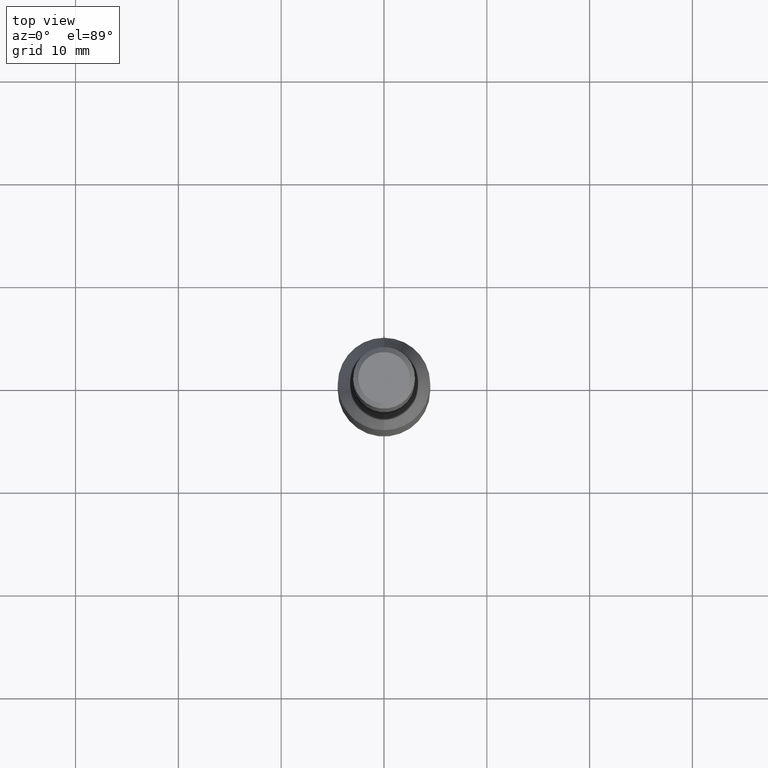
[diagram: clean part render]
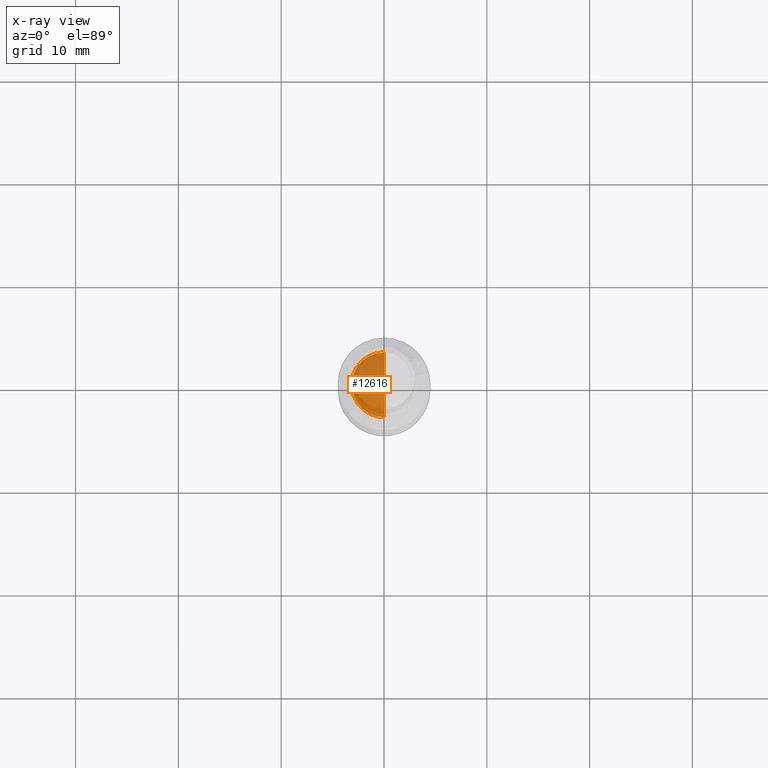
[diagram: x-ray — body ghosted, one internal face saturated and labeled with its STEP entity id]
A machine part, top view, then the same camera in x-ray: the body is ghosted and one INTERNAL B-rep face — a face not visible from any outside direction — is saturated and labeled: STEP entity #12616.
In plain terms, the highlighted conical surface has half-angle 59 deg.
Its self-contained STEP definition (entity closure, byte-faithful):
#36 = VERTEX_POINT ( 'NONE', #6947 ) ;
#1636 = EDGE_CURVE ( 'NONE', #8512, #2164, #7143, .T. ) ;
#1727 = DIRECTION ( 'NONE',  ( 1.049727191138616400E-016, -0.8571673007021104500, -0.5150380749100574900 ) ) ;
#1789 = CONICAL_SURFACE ( 'NONE', #7778, 3.149999999999996400, 1.029744258676650800 ) ;
#1980 = ORIENTED_EDGE ( 'NONE', *, *, #1636, .F. ) ;
#2164 = VERTEX_POINT ( 'NONE', #10788 ) ;
#2410 = CARTESIAN_POINT ( 'NONE',  ( 0.0000000000000000000, -3.574085080567152800E-017, 30.00000000000000000 ) ) ;
#2613 = EDGE_LOOP ( 'NONE', ( #11109, #9709, #1980 ) ) ;
#3146 = VECTOR ( 'NONE', #11883, 999.9999999999998900 ) ;
#3766 = EDGE_CURVE ( 'NONE', #36, #8512, #5040, .T. ) ;
#4159 = CARTESIAN_POINT ( 'NONE',  ( 0.0000000000000000000, -3.574085080567152800E-017, 30.00000000000000000 ) ) ;
#4484 = LINE ( 'NONE', #7873, #6081 ) ;
#5040 = LINE ( 'NONE', #11831, #3146 ) ;
#5296 = DIRECTION ( 'NONE',  ( 0.0000000000000000000, -1.000000000000000000, 0.0000000000000000000 ) ) ;
#5344 = CARTESIAN_POINT ( 'NONE',  ( 3.857637417314159700E-016, 3.149999999999996400, 30.00000000000000000 ) ) ;
#6081 = VECTOR ( 'NONE', #1727, 999.9999999999998900 ) ;
#6222 = DIRECTION ( 'NONE',  ( -0.0000000000000000000, -1.191361693522384500E-018, 1.000000000000000000 ) ) ;
#6361 = AXIS2_PLACEMENT_3D ( 'NONE', #4159, #6222, #5296 ) ;
#6947 = CARTESIAN_POINT ( 'NONE',  ( 0.0000000000000000000, -3.799575412833663200E-017, 31.89271094993682700 ) ) ;
#7143 = CIRCLE ( 'NONE', #6361, 3.149999999999996400 ) ;
#7778 = AXIS2_PLACEMENT_3D ( 'NONE', #2410, #9456, #10467 ) ;
#7873 = CARTESIAN_POINT ( 'NONE',  ( 3.857637417314158300E-016, -3.149999999999996400, 30.00000000000000000 ) ) ;
#8512 = VERTEX_POINT ( 'NONE', #5344 ) ;
#9456 = DIRECTION ( 'NONE',  ( 0.0000000000000000000, 1.191361693522384500E-018, -1.000000000000000000 ) ) ;
#9709 = ORIENTED_EDGE ( 'NONE', *, *, #11295, .T. ) ;
#9843 = FACE_OUTER_BOUND ( 'NONE', #2613, .T. ) ;
#10467 = DIRECTION ( 'NONE',  ( 0.0000000000000000000, 1.000000000000000000, 0.0000000000000000000 ) ) ;
#10788 = CARTESIAN_POINT ( 'NONE',  ( 0.0000000000000000000, -3.149999999999996400, 30.00000000000000000 ) ) ;
#11109 = ORIENTED_EDGE ( 'NONE', *, *, #3766, .F. ) ;
#11295 = EDGE_CURVE ( 'NONE', #36, #2164, #4484, .T. ) ;
#11831 = CARTESIAN_POINT ( 'NONE',  ( 0.0000000000000000000, 3.149999999999996400, 30.00000000000000000 ) ) ;
#11883 = DIRECTION ( 'NONE',  ( 0.0000000000000000000, 0.8571673007021104500, -0.5150380749100574900 ) ) ;
#12616 = ADVANCED_FACE ( 'NONE', ( #9843 ), #1789, .F. ) ;